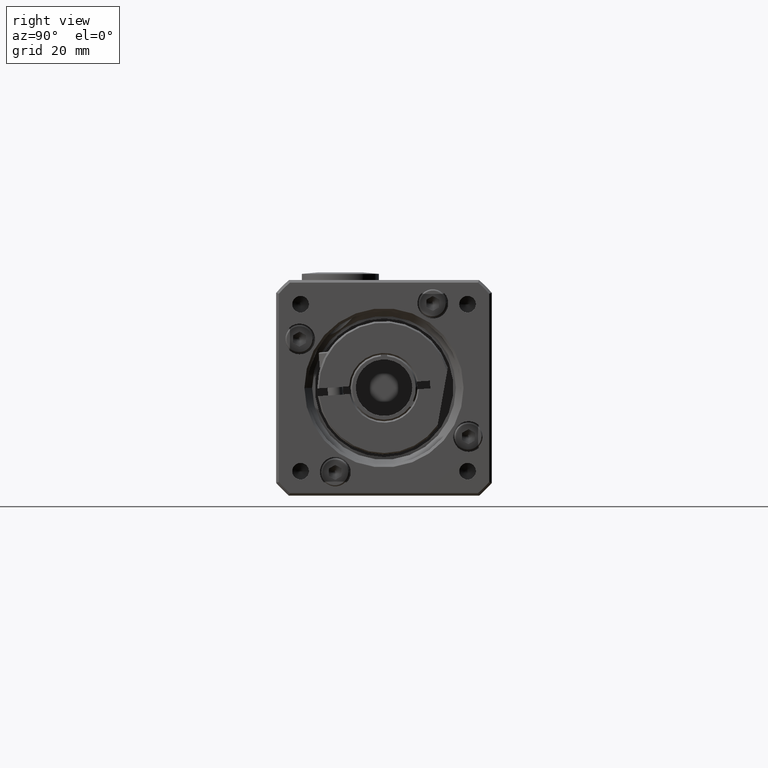
[diagram: clean part render]
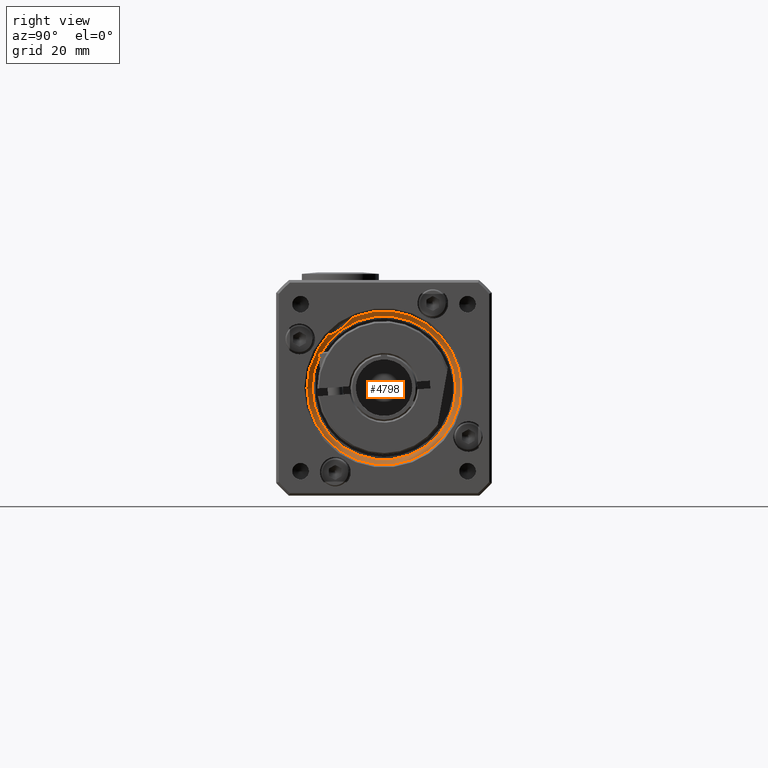
[diagram: same view with one face highlighted and labeled with its STEP entity id]
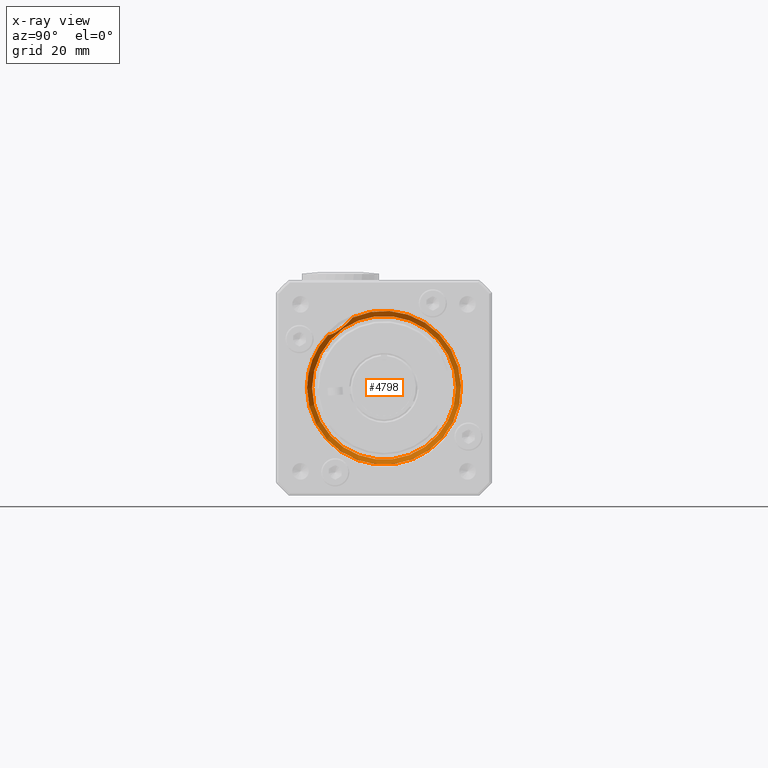
[diagram: x-ray of the same camera — body ghosted, the highlighted face saturated]
A machine part, right view. The second image highlights one B-rep face of the part: STEP entity #4798.
The next image is the same camera in x-ray: the body ghosted, the highlighted face saturated — about 0% of this face is hidden behind the body in this view.
In plain terms, the highlighted conical surface has half-angle 45 deg.
Its self-contained STEP definition (entity closure, byte-faithful):
#47=B_SPLINE_CURVE_WITH_KNOTS('',3,(#7686,#7687,#7688,#7689,#7690,#7691,
#7692,#7693,#7694,#7695,#7696,#7697),.UNSPECIFIED.,.F.,.F.,(4,2,2,2,2,4),
(2.70346436937318,2.80436828367936,2.99543556176353,3.18650283984771,3.25153405232948,
3.30580857138017),.UNSPECIFIED.);
#626=CONICAL_SURFACE('',#5245,14.5,44.9999999999999);
#907=FACE_BOUND('',#1491,.T.);
#1104=FACE_OUTER_BOUND('',#1490,.T.);
#1490=EDGE_LOOP('',(#3519,#3520));
#1491=EDGE_LOOP('',(#3521));
#1835=CIRCLE('',#5139,14.);
#1877=CIRCLE('',#5208,15.);
#2148=VERTEX_POINT('',#7382);
#2202=VERTEX_POINT('',#7598);
#2203=VERTEX_POINT('',#7599);
#2600=EDGE_CURVE('',#2148,#2148,#1835,.T.);
#2688=EDGE_CURVE('',#2203,#2202,#1877,.T.);
#2705=EDGE_CURVE('',#2203,#2202,#47,.T.);
#3519=ORIENTED_EDGE('',*,*,#2705,.T.);
#3520=ORIENTED_EDGE('',*,*,#2688,.F.);
#3521=ORIENTED_EDGE('',*,*,#2600,.T.);
#4798=ADVANCED_FACE('',(#1104,#907),#626,.F.);
#5139=AXIS2_PLACEMENT_3D('',#7383,#5911,#5912);
#5208=AXIS2_PLACEMENT_3D('',#7635,#6078,#6079);
#5245=AXIS2_PLACEMENT_3D('',#7698,#6154,#6155);
#5911=DIRECTION('center_axis',(-1.,-1.09392228088427E-16,1.93008699861479E-15));
#5912=DIRECTION('ref_axis',(-1.93008699861478E-15,-1.00336405850499E-14,
-1.));
#6078=DIRECTION('center_axis',(-1.,-1.09392228088427E-16,1.93008699861479E-15));
#6079=DIRECTION('ref_axis',(-1.93008699861478E-15,-1.00336405850499E-14,
-1.));
#6154=DIRECTION('center_axis',(1.,1.09392228088427E-16,-1.93008699861479E-15));
#6155=DIRECTION('ref_axis',(1.09392228088446E-16,-1.,1.00336405850499E-14));
#7382=CARTESIAN_POINT('',(50.7159950143863,-52.8674851319125,-27.3477552941332));
#7383=CARTESIAN_POINT('Origin',(50.7159950143863,-38.8674851319125,-27.3477552941334));
#7598=CARTESIAN_POINT('',(51.7159950143863,-49.7783978221606,-17.0544572674666));
#7599=CARTESIAN_POINT('',(51.7159950143863,-44.9565724416641,-13.6392537081021));
#7635=CARTESIAN_POINT('Origin',(51.7159950143863,-38.8674851319125,-27.3477552941334));
#7686=CARTESIAN_POINT('Ctrl Pts',(51.7159950143863,-44.9565724416641,-13.6392537081021));
#7687=CARTESIAN_POINT('Ctrl Pts',(51.5777128675699,-45.1573211107532,-13.8797328264768));
#7688=CARTESIAN_POINT('Ctrl Pts',(51.4564303523004,-45.3704305077599,-14.1158117929654));
#7689=CARTESIAN_POINT('Ctrl Pts',(51.1603850019015,-46.0147645056869,-14.7824314050705));
#7690=CARTESIAN_POINT('Ctrl Pts',(51.0179252037277,-46.5167029784424,-15.2442650852773));
#7691=CARTESIAN_POINT('Ctrl Pts',(50.9379393113517,-47.5816384483635,-16.0877804369271));
#7692=CARTESIAN_POINT('Ctrl Pts',(50.9971502266966,-48.1420702520963,-16.4723836102036));
#7693=CARTESIAN_POINT('Ctrl Pts',(51.239502748884,-48.8804121241765,-16.82573148747));
#7694=CARTESIAN_POINT('Ctrl Pts',(51.3226709265807,-49.0868639935481,-16.9096904284797));
#7695=CARTESIAN_POINT('Ctrl Pts',(51.5114069913066,-49.4590309689254,-17.0159113132378));
#7696=CARTESIAN_POINT('Ctrl Pts',(51.6110287425376,-49.6260148872843,-17.0458941402784));
#7697=CARTESIAN_POINT('Ctrl Pts',(51.7159950143863,-49.7783978221606,-17.0544572674666));
#7698=CARTESIAN_POINT('Origin',(51.2159950143863,-38.8674851319125,-27.3477552941334));